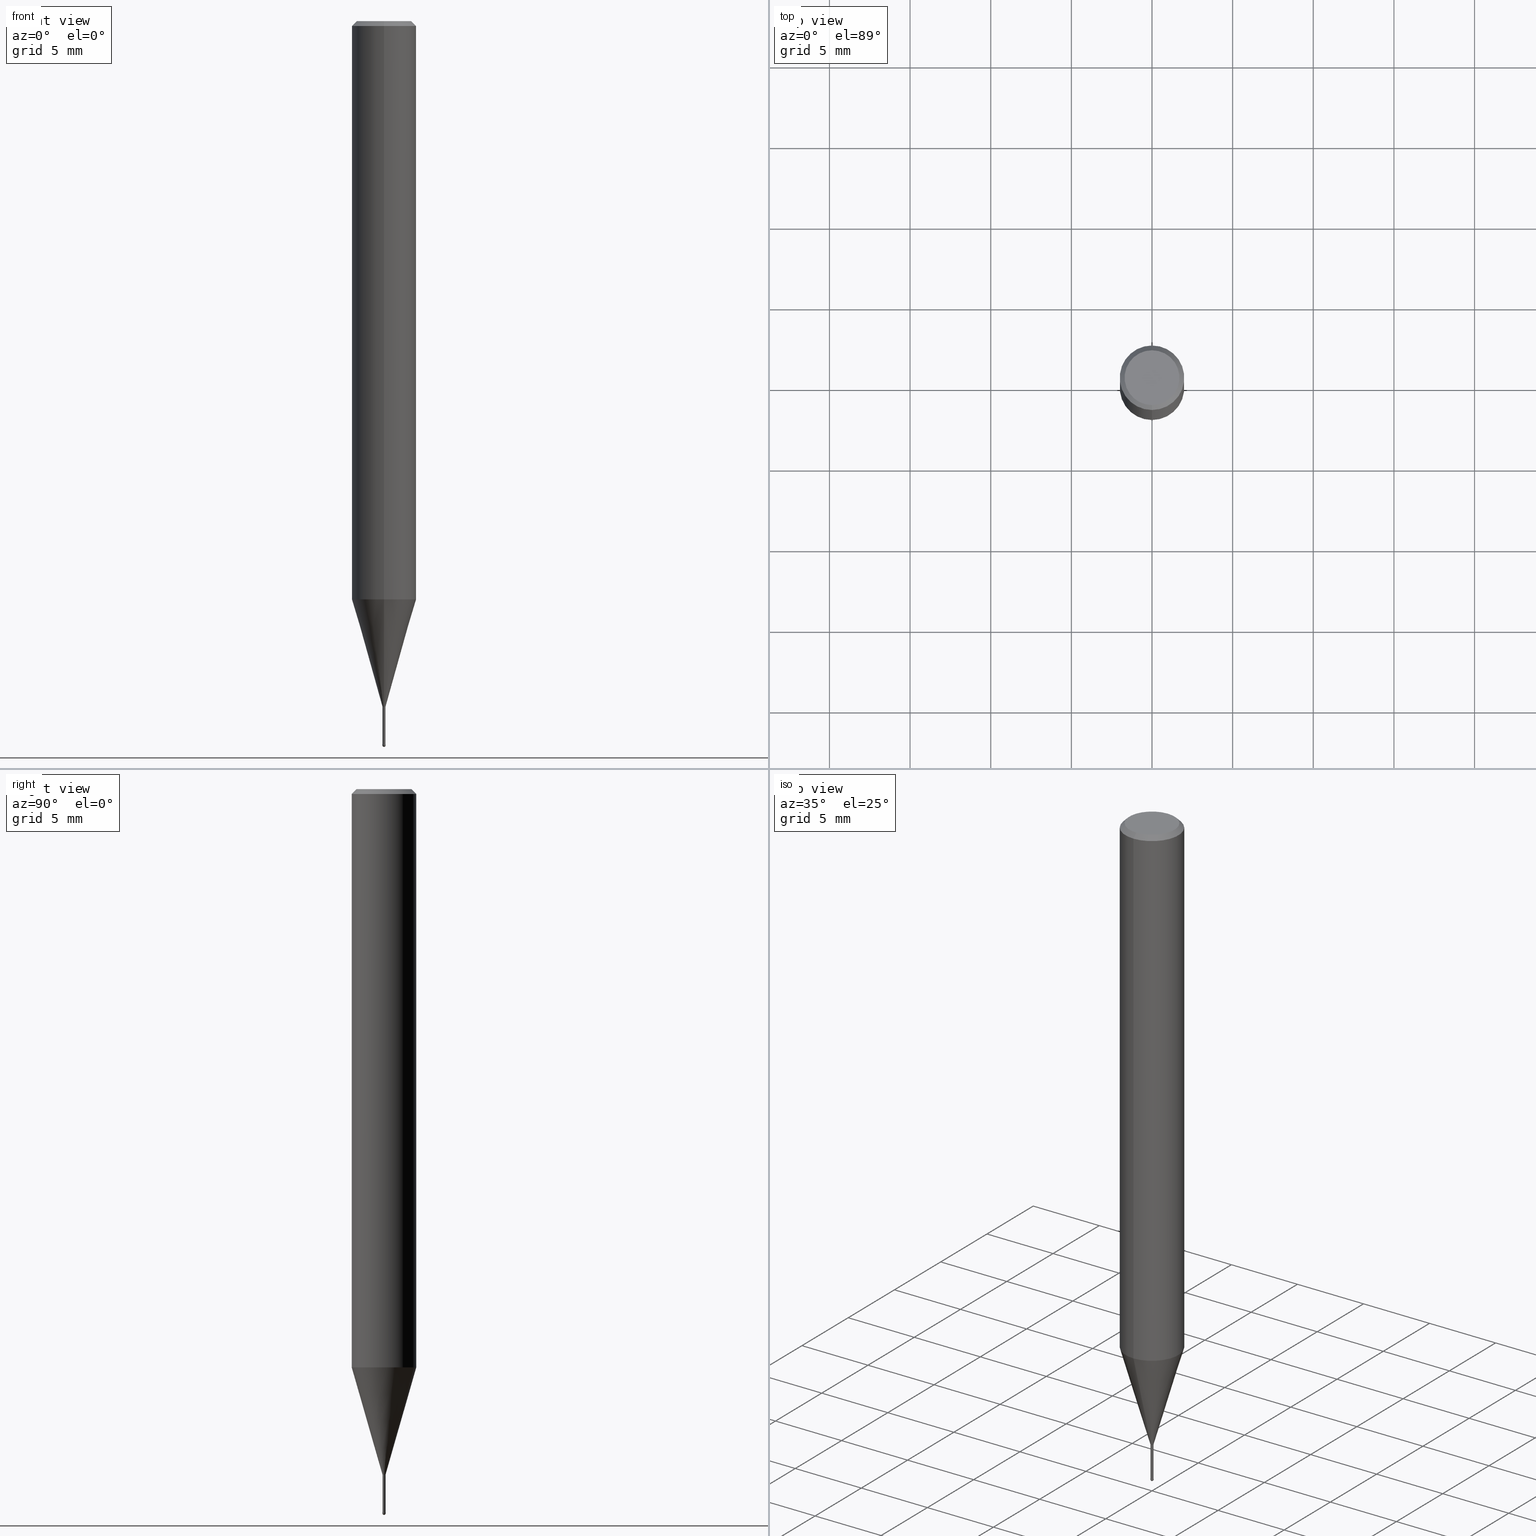
[diagram: canonical four-view strip — front | top / right | iso, engineering-drawing reading convention]
A machine part, canonical four-view strip (front | top / right | iso — engineering-drawing reading convention). The complete STEP part file that produces these views, byte-faithful:
ISO-10303-21;
HEADER;
FILE_DESCRIPTION(('no description'),'unknown implementation level');
FILE_NAME('HSLB2002-025-Huellk.stp','  ',('CIMSOURCE GmbH'),('CADClick - KiM GmbH - www.kimweb.de'),'unknown preprocess','ACIS','unknown authorization');
FILE_SCHEMA(('automotive_design'));
ENDSEC;
DATA;
#1=MECHANICAL_DESIGN_GEOMETRIC_PRESENTATION_REPRESENTATION(' ',(#14,#15,#16,#17,#18,#19,#20,#21,#22,#23,#24,#25,#26,#27,#28,#29,#30,#31,#32,#33,#34,#35,#36,#37,#38,#39,#40,#41,#42,#43,#44,#45,#46,#47,#48,#49,#50,#51,#52,#53,#54,#55,#56,#57,#58,#59,#60,#61,#62,#63,#64,#65,#66,#67,#68,#69,#70,#71,#72,#73,#74),#10);
#2=PRODUCT_DEFINITION_CONTEXT('',#75,'design');
#3=APPLICATION_PROTOCOL_DEFINITION('INTERNATIONAL STANDARD','automotive_design',1994,#75);
#4=PRODUCT_CATEGORY_RELATIONSHIP('NONE','NONE',#76,#77);
#5=SHAPE_DEFINITION_REPRESENTATION(#78,#79);
#6=PRODUCT_DEFINITION_CONTEXT('',#80,'design');
#7=APPLICATION_PROTOCOL_DEFINITION('INTERNATIONAL STANDARD','automotive_design',1994,#80);
#8=PRODUCT_CATEGORY_RELATIONSHIP('NONE','NONE',#81,#82);
#9=SHAPE_DEFINITION_REPRESENTATION(#83,#84);
#10= (GEOMETRIC_REPRESENTATION_CONTEXT(3)GLOBAL_UNCERTAINTY_ASSIGNED_CONTEXT((#87))GLOBAL_UNIT_ASSIGNED_CONTEXT((#89,#90,#91))REPRESENTATION_CONTEXT('NONE','WORKSPACE'));
#14=STYLED_ITEM('',(#93),#94);
#15=STYLED_ITEM('',(#95),#96);
#16=STYLED_ITEM('',(#97),#98);
#17=STYLED_ITEM('',(#99),#100);
#18=STYLED_ITEM('',(#101),#102);
#19=STYLED_ITEM('',(#103),#104);
#20=STYLED_ITEM('',(#105),#106);
#21=STYLED_ITEM('',(#107),#108);
#22=STYLED_ITEM('',(#109),#110);
#23=STYLED_ITEM('',(#111),#112);
#24=STYLED_ITEM('',(#113),#114);
#25=STYLED_ITEM('',(#115),#116);
#26=STYLED_ITEM('',(#117),#118);
#27=STYLED_ITEM('',(#119),#120);
#28=STYLED_ITEM('',(#121),#122);
#29=STYLED_ITEM('',(#123),#124);
#30=STYLED_ITEM('',(#125),#126);
#31=STYLED_ITEM('',(#127),#128);
#32=STYLED_ITEM('',(#129),#130);
#33=STYLED_ITEM('',(#131),#132);
#34=STYLED_ITEM('',(#133),#134);
#35=STYLED_ITEM('',(#135),#136);
#36=STYLED_ITEM('',(#137),#138);
#37=STYLED_ITEM('',(#139),#140);
#38=STYLED_ITEM('',(#141),#142);
#39=STYLED_ITEM('',(#143),#144);
#40=STYLED_ITEM('',(#145),#146);
#41=STYLED_ITEM('',(#147),#148);
#42=STYLED_ITEM('',(#149),#150);
#43=STYLED_ITEM('',(#151),#152);
#44=STYLED_ITEM('',(#153),#154);
#45=STYLED_ITEM('',(#155),#156);
#46=STYLED_ITEM('',(#157),#158);
#47=STYLED_ITEM('',(#159),#160);
#48=STYLED_ITEM('',(#161),#162);
#49=STYLED_ITEM('',(#163),#164);
#50=STYLED_ITEM('',(#165),#166);
#51=STYLED_ITEM('',(#167),#168);
#52=STYLED_ITEM('',(#169),#170);
#53=STYLED_ITEM('',(#171),#172);
#54=STYLED_ITEM('',(#173),#174);
#55=STYLED_ITEM('',(#175),#176);
#56=STYLED_ITEM('',(#177),#178);
#57=STYLED_ITEM('',(#179),#180);
#58=STYLED_ITEM('',(#181),#182);
#59=STYLED_ITEM('',(#183),#184);
#60=STYLED_ITEM('',(#185),#186);
#61=STYLED_ITEM('',(#187),#188);
#62=STYLED_ITEM('',(#189),#190);
#63=STYLED_ITEM('',(#191),#192);
#64=STYLED_ITEM('',(#193),#194);
#65=STYLED_ITEM('',(#195),#196);
#66=STYLED_ITEM('',(#197),#198);
#67=STYLED_ITEM('',(#199),#200);
#68=STYLED_ITEM('',(#201),#202);
#69=STYLED_ITEM('',(#203),#204);
#70=STYLED_ITEM('',(#205),#206);
#71=STYLED_ITEM('',(#207),#208);
#72=STYLED_ITEM('',(#209),#210);
#73=STYLED_ITEM('',(#211),#212);
#74=STYLED_ITEM('',(#213),#214);
#75=APPLICATION_CONTEXT(' ');
#76=PRODUCT_CATEGORY('part','NONE');
#77=PRODUCT_RELATED_PRODUCT_CATEGORY('detail',' ',(#215));
#78=PRODUCT_DEFINITION_SHAPE('NONE','NONE',#216);
#79=ADVANCED_BREP_SHAPE_REPRESENTATION('1',(#146,#217),#10);
#80=APPLICATION_CONTEXT(' ');
#81=PRODUCT_CATEGORY('part','NONE');
#82=PRODUCT_RELATED_PRODUCT_CATEGORY('detail',' ',(#218));
#83=PRODUCT_DEFINITION_SHAPE('NONE','NONE',#219);
#84=ADVANCED_BREP_SHAPE_REPRESENTATION('2',(#96,#220),#10);
#87=UNCERTAINTY_MEASURE_WITH_UNIT(LENGTH_MEASURE(1.0E-006),#89,'','');
#89= (CONVERSION_BASED_UNIT('MILLIMETRE',#223)LENGTH_UNIT()NAMED_UNIT(#226));
#90= (NAMED_UNIT(#228)PLANE_ANGLE_UNIT()SI_UNIT($,.RADIAN.));
#91= (NAMED_UNIT(#228)SOLID_ANGLE_UNIT()SI_UNIT($,.STERADIAN.));
#93=PRESENTATION_STYLE_ASSIGNMENT((#234));
#94=EDGE_CURVE('',#116,#136,#235,.T.);
#95=PRESENTATION_STYLE_ASSIGNMENT((#236));
#96=MANIFOLD_SOLID_BREP('2',#237);
#97=PRESENTATION_STYLE_ASSIGNMENT((#238));
#98=VERTEX_POINT('',#239);
#99=PRESENTATION_STYLE_ASSIGNMENT((#240));
#100=EDGE_CURVE('',#136,#116,#241,.T.);
#101=PRESENTATION_STYLE_ASSIGNMENT((#242));
#102=VERTEX_POINT('',#243);
#103=PRESENTATION_STYLE_ASSIGNMENT((#244));
#104=VERTEX_POINT('',#245);
#105=PRESENTATION_STYLE_ASSIGNMENT((#246));
#106=ADVANCED_FACE('',(#247),#248,.T.);
#107=PRESENTATION_STYLE_ASSIGNMENT((#249));
#108=EDGE_CURVE('',#120,#140,#250,.T.);
#109=PRESENTATION_STYLE_ASSIGNMENT((#251));
#110=EDGE_CURVE('',#98,#140,#252,.T.);
#111=PRESENTATION_STYLE_ASSIGNMENT((#253));
#112=EDGE_CURVE('',#182,#152,#254,.T.);
#113=PRESENTATION_STYLE_ASSIGNMENT((#255));
#114=EDGE_CURVE('',#180,#190,#256,.T.);
#115=PRESENTATION_STYLE_ASSIGNMENT((#257));
#116=VERTEX_POINT('',#258);
#117=PRESENTATION_STYLE_ASSIGNMENT((#259));
#118=EDGE_CURVE('',#124,#142,#260,.T.);
#119=PRESENTATION_STYLE_ASSIGNMENT((#261));
#120=VERTEX_POINT('',#262);
#121=PRESENTATION_STYLE_ASSIGNMENT((#263));
#122=EDGE_CURVE('',#152,#182,#264,.T.);
#123=PRESENTATION_STYLE_ASSIGNMENT((#265));
#124=VERTEX_POINT('',#266);
#125=PRESENTATION_STYLE_ASSIGNMENT((#267));
#126=EDGE_CURVE('',#138,#180,#268,.T.);
#127=PRESENTATION_STYLE_ASSIGNMENT((#269));
#128=ADVANCED_FACE('',(#270),#271,.T.);
#129=PRESENTATION_STYLE_ASSIGNMENT((#272));
#130=ADVANCED_FACE('',(#273),#274,.T.);
#131=PRESENTATION_STYLE_ASSIGNMENT((#275));
#132=EDGE_CURVE('',#154,#180,#276,.T.);
#133=PRESENTATION_STYLE_ASSIGNMENT((#277));
#134=ADVANCED_FACE('',(#278),#279,.T.);
#135=PRESENTATION_STYLE_ASSIGNMENT((#280));
#136=VERTEX_POINT('',#281);
#137=PRESENTATION_STYLE_ASSIGNMENT((#282));
#138=VERTEX_POINT('',#283);
#139=PRESENTATION_STYLE_ASSIGNMENT((#284));
#140=VERTEX_POINT('',#285);
#141=PRESENTATION_STYLE_ASSIGNMENT((#286));
#142=VERTEX_POINT('',#287);
#143=PRESENTATION_STYLE_ASSIGNMENT((#288));
#144=EDGE_CURVE('',#182,#142,#289,.T.);
#145=PRESENTATION_STYLE_ASSIGNMENT((#290));
#146=MANIFOLD_SOLID_BREP('1',#291);
#147=PRESENTATION_STYLE_ASSIGNMENT((#292));
#148=EDGE_CURVE('',#124,#152,#293,.T.);
#149=PRESENTATION_STYLE_ASSIGNMENT((#294));
#150=ADVANCED_FACE('',(#295),#296,.T.);
#151=PRESENTATION_STYLE_ASSIGNMENT((#297));
#152=VERTEX_POINT('',#298);
#153=PRESENTATION_STYLE_ASSIGNMENT((#299));
#154=VERTEX_POINT('',#300);
#155=PRESENTATION_STYLE_ASSIGNMENT((#301));
#156=EDGE_CURVE('',#154,#104,#302,.T.);
#157=PRESENTATION_STYLE_ASSIGNMENT((#303));
#158=EDGE_CURVE('',#180,#154,#304,.T.);
#159=PRESENTATION_STYLE_ASSIGNMENT((#305));
#160=EDGE_CURVE('',#138,#104,#306,.T.);
#161=PRESENTATION_STYLE_ASSIGNMENT((#307));
#162=ADVANCED_FACE('',(#308),#309,.T.);
#163=PRESENTATION_STYLE_ASSIGNMENT((#310));
#164=EDGE_CURVE('',#116,#182,#311,.T.);
#165=PRESENTATION_STYLE_ASSIGNMENT((#312));
#166=ADVANCED_FACE('',(#313),#314,.T.);
#167=PRESENTATION_STYLE_ASSIGNMENT((#315));
#168=EDGE_CURVE('',#140,#98,#316,.T.);
#169=PRESENTATION_STYLE_ASSIGNMENT((#317));
#170=EDGE_CURVE('',#104,#138,#318,.T.);
#171=PRESENTATION_STYLE_ASSIGNMENT((#319));
#172=ADVANCED_FACE('',(#320),#321,.T.);
#173=PRESENTATION_STYLE_ASSIGNMENT((#322));
#174=EDGE_CURVE('',#120,#102,#323,.T.);
#175=PRESENTATION_STYLE_ASSIGNMENT((#324));
#176=ADVANCED_FACE('',(#325),#326,.T.);
#177=PRESENTATION_STYLE_ASSIGNMENT((#327));
#178=ADVANCED_FACE('',(#328),#329,.T.);
#179=PRESENTATION_STYLE_ASSIGNMENT((#330));
#180=VERTEX_POINT('',#331);
#181=PRESENTATION_STYLE_ASSIGNMENT((#332));
#182=VERTEX_POINT('',#333);
#183=PRESENTATION_STYLE_ASSIGNMENT((#334));
#184=ADVANCED_FACE('',(#335),#336,.T.);
#185=PRESENTATION_STYLE_ASSIGNMENT((#337));
#186=ADVANCED_FACE('',(#338,#339),#340,.T.);
#187=PRESENTATION_STYLE_ASSIGNMENT((#341));
#188=EDGE_CURVE('',#98,#140,#342,.T.);
#189=PRESENTATION_STYLE_ASSIGNMENT((#343));
#190=VERTEX_POINT('',#344);
#191=PRESENTATION_STYLE_ASSIGNMENT((#345));
#192=EDGE_CURVE('',#190,#196,#346,.T.);
#193=PRESENTATION_STYLE_ASSIGNMENT((#347));
#194=ADVANCED_FACE('',(#348),#349,.T.);
#195=PRESENTATION_STYLE_ASSIGNMENT((#350));
#196=VERTEX_POINT('',#351);
#197=PRESENTATION_STYLE_ASSIGNMENT((#352));
#198=ADVANCED_FACE('',(#353),#354,.T.);
#199=PRESENTATION_STYLE_ASSIGNMENT((#355));
#200=ADVANCED_FACE('',(#356),#357,.T.);
#201=PRESENTATION_STYLE_ASSIGNMENT((#358));
#202=EDGE_CURVE('',#152,#136,#359,.T.);
#203=PRESENTATION_STYLE_ASSIGNMENT((#360));
#204=ADVANCED_FACE('',(#361),#362,.T.);
#205=PRESENTATION_STYLE_ASSIGNMENT((#363));
#206=EDGE_CURVE('',#98,#102,#364,.T.);
#207=PRESENTATION_STYLE_ASSIGNMENT((#365));
#208=EDGE_CURVE('',#142,#124,#366,.T.);
#209=PRESENTATION_STYLE_ASSIGNMENT((#367));
#210=EDGE_CURVE('',#196,#190,#368,.T.);
#211=PRESENTATION_STYLE_ASSIGNMENT((#369));
#212=EDGE_CURVE('',#196,#154,#370,.T.);
#213=PRESENTATION_STYLE_ASSIGNMENT((#371));
#214=EDGE_CURVE('',#102,#120,#372,.T.);
#215=PRODUCT('1','1','PART-1-DESC',(#373));
#216=PRODUCT_DEFINITION('NONE','NONE',#374,#2);
#217=AXIS2_PLACEMENT_3D('',#375,#376,#377);
#218=PRODUCT('2','2','PART-2-DESC',(#378));
#219=PRODUCT_DEFINITION('NONE','NONE',#379,#6);
#220=AXIS2_PLACEMENT_3D('',#380,#381,#382);
#223=LENGTH_MEASURE_WITH_UNIT(LENGTH_MEASURE(1.0),#383);
#226=DIMENSIONAL_EXPONENTS(1.0,0.0,0.0,0.0,0.0,0.0,0.0);
#228=DIMENSIONAL_EXPONENTS(0.0,0.0,0.0,0.0,0.0,0.0,0.0);
#234=CURVE_STYLE('',#384,POSITIVE_LENGTH_MEASURE(1.0E-006),#385);
#235=CIRCLE('',#386,1.7);
#236=SURFACE_STYLE_USAGE(.BOTH.,#387);
#237=CLOSED_SHELL('',(#150,#134,#198,#194,#200));
#238=POINT_STYLE(' ',#388,POSITIVE_LENGTH_MEASURE(1.0E-006),#389);
#239=CARTESIAN_POINT('',(1.22460635382238E-017,-0.1,-44.9));
#240=CURVE_STYLE('',#390,POSITIVE_LENGTH_MEASURE(1.0E-006),#391);
#241=CIRCLE('',#392,1.7);
#242=POINT_STYLE(' ',#393,POSITIVE_LENGTH_MEASURE(1.0E-006),#394);
#243=CARTESIAN_POINT('',(1.22338174746855E-017,-0.0999,-44.84));
#244=POINT_STYLE(' ',#395,POSITIVE_LENGTH_MEASURE(1.0E-006),#396);
#245=CARTESIAN_POINT('',(2.44915147732706E-016,-1.99995,-35.856));
#246=SURFACE_STYLE_USAGE(.BOTH.,#397);
#247=FACE_OUTER_BOUND('',#398,.T.);
#248=CYLINDRICAL_SURFACE('',#399,0.09495);
#249=CURVE_STYLE('',#400,POSITIVE_LENGTH_MEASURE(1.0E-006),#401);
#250=LINE('',#402,#403);
#251=CURVE_STYLE('',#404,POSITIVE_LENGTH_MEASURE(1.0E-006),#405);
#252=CIRCLE('',#406,0.1);
#253=CURVE_STYLE('',#407,POSITIVE_LENGTH_MEASURE(1.0E-006),#408);
#254=CIRCLE('',#409,2.0);
#255=CURVE_STYLE('',#410,POSITIVE_LENGTH_MEASURE(1.0E-006),#411);
#256=LINE('',#412,#413);
#257=POINT_STYLE(' ',#414,POSITIVE_LENGTH_MEASURE(1.0E-006),#415);
#258=CARTESIAN_POINT('',(0.0,1.7,0.0));
#259=CURVE_STYLE('',#416,POSITIVE_LENGTH_MEASURE(1.0E-006),#417);
#260=CIRCLE('',#418,2.0);
#261=POINT_STYLE(' ',#419,POSITIVE_LENGTH_MEASURE(1.0E-006),#420);
#262=CARTESIAN_POINT('',(0.0,0.0999,-44.84));
#263=CURVE_STYLE('',#421,POSITIVE_LENGTH_MEASURE(1.0E-006),#422);
#264=CIRCLE('',#423,2.0);
#265=POINT_STYLE(' ',#424,POSITIVE_LENGTH_MEASURE(1.0E-006),#425);
#266=CARTESIAN_POINT('',(2.44921270764475E-016,-2.0,-35.856));
#267=CURVE_STYLE('',#426,POSITIVE_LENGTH_MEASURE(1.0E-006),#427);
#268=LINE('',#428,#429);
#269=SURFACE_STYLE_USAGE(.BOTH.,#430);
#270=FACE_OUTER_BOUND('',#431,.T.);
#271=CONICAL_SURFACE('',#432,1.85,0.785398163397453);
#272=SURFACE_STYLE_USAGE(.BOTH.,#433);
#273=FACE_OUTER_BOUND('',#434,.T.);
#274=CONICAL_SURFACE('',#435,1.85,0.785398163397453);
#275=CURVE_STYLE('',#436,POSITIVE_LENGTH_MEASURE(1.0E-006),#437);
#276=CIRCLE('',#438,0.09495);
#277=SURFACE_STYLE_USAGE(.BOTH.,#439);
#278=FACE_OUTER_BOUND('',#440,.T.);
#279=CONICAL_SURFACE('',#441,0.09995,0.00166666512345941);
#280=POINT_STYLE(' ',#442,POSITIVE_LENGTH_MEASURE(1.0E-006),#443);
#281=CARTESIAN_POINT('',(2.08183080149804E-016,-1.7,0.0));
#282=POINT_STYLE(' ',#444,POSITIVE_LENGTH_MEASURE(1.0E-006),#445);
#283=CARTESIAN_POINT('',(0.0,1.99995,-35.856));
#284=POINT_STYLE(' ',#446,POSITIVE_LENGTH_MEASURE(1.0E-006),#447);
#285=CARTESIAN_POINT('',(0.0,0.1,-44.9));
#286=POINT_STYLE(' ',#448,POSITIVE_LENGTH_MEASURE(1.0E-006),#449);
#287=CARTESIAN_POINT('',(0.0,2.0,-35.856));
#288=CURVE_STYLE('',#450,POSITIVE_LENGTH_MEASURE(1.0E-006),#451);
#289=LINE('',#452,#453);
#290=SURFACE_STYLE_USAGE(.BOTH.,#454);
#291=CLOSED_SHELL('',(#204,#172,#162,#128,#186,#176,#130,#166,#184,#106,#178));
#292=CURVE_STYLE('',#455,POSITIVE_LENGTH_MEASURE(1.0E-006),#456);
#293=LINE('',#457,#458);
#294=SURFACE_STYLE_USAGE(.BOTH.,#459);
#295=FACE_OUTER_BOUND('',#460,.T.);
#296=SPHERICAL_SURFACE('',#461,0.1);
#297=POINT_STYLE(' ',#462,POSITIVE_LENGTH_MEASURE(1.0E-006),#463);
#298=CARTESIAN_POINT('',(2.44921270764475E-016,-2.0,-0.299999999999997));
#299=POINT_STYLE(' ',#464,POSITIVE_LENGTH_MEASURE(1.0E-006),#465);
#300=CARTESIAN_POINT('',(1.16276373295435E-017,-0.09495,-42.5));
#301=CURVE_STYLE('',#466,POSITIVE_LENGTH_MEASURE(1.0E-006),#467);
#302=LINE('',#468,#469);
#303=CURVE_STYLE('',#470,POSITIVE_LENGTH_MEASURE(1.0E-006),#471);
#304=CIRCLE('',#472,0.09495);
#305=CURVE_STYLE('',#473,POSITIVE_LENGTH_MEASURE(1.0E-006),#474);
#306=CIRCLE('',#475,1.99995);
#307=SURFACE_STYLE_USAGE(.BOTH.,#476);
#308=FACE_OUTER_BOUND('',#477,.T.);
#309=CYLINDRICAL_SURFACE('',#478,2.0);
#310=CURVE_STYLE('',#479,POSITIVE_LENGTH_MEASURE(1.0E-006),#480);
#311=LINE('',#481,#482);
#312=SURFACE_STYLE_USAGE(.BOTH.,#483);
#313=FACE_OUTER_BOUND('',#484,.T.);
#314=CYLINDRICAL_SURFACE('',#485,2.0);
#315=CURVE_STYLE('',#486,POSITIVE_LENGTH_MEASURE(1.0E-006),#487);
#316=CIRCLE('',#488,0.1);
#317=CURVE_STYLE('',#489,POSITIVE_LENGTH_MEASURE(1.0E-006),#490);
#318=CIRCLE('',#491,1.99995);
#319=SURFACE_STYLE_USAGE(.BOTH.,#492);
#320=FACE_OUTER_BOUND('',#493,.T.);
#321=CONICAL_SURFACE('',#494,1.04745,0.279233718115795);
#322=CURVE_STYLE('',#495,POSITIVE_LENGTH_MEASURE(1.0E-006),#496);
#323=CIRCLE('',#497,0.0999);
#324=SURFACE_STYLE_USAGE(.BOTH.,#498);
#325=FACE_OUTER_BOUND('',#499,.T.);
#326=PLANE('',#500);
#327=SURFACE_STYLE_USAGE(.BOTH.,#501);
#328=FACE_OUTER_BOUND('',#502,.T.);
#329=PLANE('',#503);
#330=POINT_STYLE(' ',#504,POSITIVE_LENGTH_MEASURE(1.0E-006),#505);
#331=CARTESIAN_POINT('',(0.0,0.09495,-42.5));
#332=POINT_STYLE(' ',#506,POSITIVE_LENGTH_MEASURE(1.0E-006),#507);
#333=CARTESIAN_POINT('',(0.0,2.0,-0.299999999999997));
#334=SURFACE_STYLE_USAGE(.BOTH.,#508);
#335=FACE_OUTER_BOUND('',#509,.T.);
#336=CONICAL_SURFACE('',#510,1.04745,0.279233718115795);
#337=SURFACE_STYLE_USAGE(.BOTH.,#511);
#338=FACE_OUTER_BOUND('',#512,.T.);
#339=FACE_BOUND('',#513,.T.);
#340=PLANE('',#514);
#341=CURVE_STYLE('',#515,POSITIVE_LENGTH_MEASURE(1.0E-006),#516);
#342=CIRCLE('',#517,0.1);
#343=POINT_STYLE(' ',#518,POSITIVE_LENGTH_MEASURE(1.0E-006),#519);
#344=CARTESIAN_POINT('',(0.0,0.09495,-44.84));
#345=CURVE_STYLE('',#520,POSITIVE_LENGTH_MEASURE(1.0E-006),#521);
#346=CIRCLE('',#522,0.09495);
#347=SURFACE_STYLE_USAGE(.BOTH.,#523);
#348=FACE_OUTER_BOUND('',#524,.T.);
#349=CONICAL_SURFACE('',#525,0.09995,0.00166666512345941);
#350=POINT_STYLE(' ',#526,POSITIVE_LENGTH_MEASURE(1.0E-006),#527);
#351=CARTESIAN_POINT('',(1.16276373295435E-017,-0.09495,-44.84));
#352=SURFACE_STYLE_USAGE(.BOTH.,#528);
#353=FACE_OUTER_BOUND('',#529,.T.);
#354=PLANE('',#530);
#355=SURFACE_STYLE_USAGE(.BOTH.,#531);
#356=FACE_OUTER_BOUND('',#532,.T.);
#357=SPHERICAL_SURFACE('',#533,0.1);
#358=CURVE_STYLE('',#534,POSITIVE_LENGTH_MEASURE(1.0E-006),#535);
#359=LINE('',#536,#537);
#360=SURFACE_STYLE_USAGE(.BOTH.,#538);
#361=FACE_OUTER_BOUND('',#539,.T.);
#362=CYLINDRICAL_SURFACE('',#540,0.09495);
#363=CURVE_STYLE('',#541,POSITIVE_LENGTH_MEASURE(1.0E-006),#542);
#364=LINE('',#543,#544);
#365=CURVE_STYLE('',#545,POSITIVE_LENGTH_MEASURE(1.0E-006),#546);
#366=CIRCLE('',#547,2.0);
#367=CURVE_STYLE('',#548,POSITIVE_LENGTH_MEASURE(1.0E-006),#549);
#368=CIRCLE('',#550,0.09495);
#369=CURVE_STYLE('',#551,POSITIVE_LENGTH_MEASURE(1.0E-006),#552);
#370=LINE('',#553,#554);
#371=CURVE_STYLE('',#555,POSITIVE_LENGTH_MEASURE(1.0E-006),#556);
#372=CIRCLE('',#557,0.0999);
#373=PRODUCT_CONTEXT('',#75,'mechanical');
#374=PRODUCT_DEFINITION_FORMATION_WITH_SPECIFIED_SOURCE(' ','NONE',#215,.NOT_KNOWN.);
#375=CARTESIAN_POINT('',(0.0,0.0,0.0));
#376=DIRECTION('',(0.0,0.0,1.0));
#377=DIRECTION('',(1.0,0.0,0.0));
#378=PRODUCT_CONTEXT('',#80,'mechanical');
#379=PRODUCT_DEFINITION_FORMATION_WITH_SPECIFIED_SOURCE(' ','NONE',#218,.NOT_KNOWN.);
#380=CARTESIAN_POINT('',(0.0,0.0,0.0));
#381=DIRECTION('',(0.0,0.0,1.0));
#382=DIRECTION('',(1.0,0.0,0.0));
#383= (NAMED_UNIT(#226)LENGTH_UNIT()SI_UNIT(.MILLI.,.METRE.));
#384=DRAUGHTING_PRE_DEFINED_CURVE_FONT('continuous');
#385=COLOUR_RGB('',0.498039215803146,0.498039215803146,0.498039215803146);
#386=AXIS2_PLACEMENT_3D('',#559,#560,#561);
#387=SURFACE_SIDE_STYLE('',(#562));
#388=PRE_DEFINED_MARKER('');
#389=COLOUR_RGB('',0.800000011920929,0.800000011920929,0.800000011920929);
#390=DRAUGHTING_PRE_DEFINED_CURVE_FONT('continuous');
#391=COLOUR_RGB('',0.498039215803146,0.498039215803146,0.498039215803146);
#392=AXIS2_PLACEMENT_3D('',#563,#564,#565);
#393=PRE_DEFINED_MARKER('');
#394=COLOUR_RGB('',0.800000011920929,0.800000011920929,0.800000011920929);
#395=PRE_DEFINED_MARKER('');
#396=COLOUR_RGB('',0.498039215803146,0.498039215803146,0.498039215803146);
#397=SURFACE_SIDE_STYLE('',(#566));
#398=EDGE_LOOP('',(#567,#568,#569,#570));
#399=AXIS2_PLACEMENT_3D('',#571,#572,#573);
#400=DRAUGHTING_PRE_DEFINED_CURVE_FONT('continuous');
#401=COLOUR_RGB('',0.800000011920929,0.800000011920929,0.800000011920929);
#402=CARTESIAN_POINT('',(-1.22399405064547E-017,0.09995,-44.87));
#403=VECTOR('',#574,1.0);
#404=DRAUGHTING_PRE_DEFINED_CURVE_FONT('continuous');
#405=COLOUR_RGB('',0.800000011920929,0.800000011920929,0.800000011920929);
#406=AXIS2_PLACEMENT_3D('',#575,#576,#577);
#407=DRAUGHTING_PRE_DEFINED_CURVE_FONT('continuous');
#408=COLOUR_RGB('',0.498039215803146,0.498039215803146,0.498039215803146);
#409=AXIS2_PLACEMENT_3D('',#578,#579,#580);
#410=DRAUGHTING_PRE_DEFINED_CURVE_FONT('continuous');
#411=COLOUR_RGB('',0.498039215803146,0.498039215803146,0.498039215803146);
#412=CARTESIAN_POINT('',(-1.16276373295435E-017,0.09495,-43.67));
#413=VECTOR('',#581,1.0);
#414=PRE_DEFINED_MARKER('');
#415=COLOUR_RGB('',0.498039215803146,0.498039215803146,0.498039215803146);
#416=DRAUGHTING_PRE_DEFINED_CURVE_FONT('continuous');
#417=COLOUR_RGB('',0.498039215803146,0.498039215803146,0.498039215803146);
#418=AXIS2_PLACEMENT_3D('',#582,#583,#584);
#419=PRE_DEFINED_MARKER('');
#420=COLOUR_RGB('',0.800000011920929,0.800000011920929,0.800000011920929);
#421=DRAUGHTING_PRE_DEFINED_CURVE_FONT('continuous');
#422=COLOUR_RGB('',0.498039215803146,0.498039215803146,0.498039215803146);
#423=AXIS2_PLACEMENT_3D('',#585,#586,#587);
#424=PRE_DEFINED_MARKER('');
#425=COLOUR_RGB('',0.498039215803146,0.498039215803146,0.498039215803146);
#426=DRAUGHTING_PRE_DEFINED_CURVE_FONT('continuous');
#427=COLOUR_RGB('',0.498039215803146,0.498039215803146,0.498039215803146);
#428=CARTESIAN_POINT('',(-1.28271392531125E-016,1.04745,-39.178));
#429=VECTOR('',#588,1.0);
#430=SURFACE_SIDE_STYLE('',(#589));
#431=EDGE_LOOP('',(#590,#591,#592,#593));
#432=AXIS2_PLACEMENT_3D('',#594,#595,#596);
#433=SURFACE_SIDE_STYLE('',(#597));
#434=EDGE_LOOP('',(#598,#599,#600,#601));
#435=AXIS2_PLACEMENT_3D('',#602,#603,#604);
#436=DRAUGHTING_PRE_DEFINED_CURVE_FONT('continuous');
#437=COLOUR_RGB('',0.498039215803146,0.498039215803146,0.498039215803146);
#438=AXIS2_PLACEMENT_3D('',#605,#606,#607);
#439=SURFACE_SIDE_STYLE('',(#608));
#440=EDGE_LOOP('',(#609,#610,#611,#612));
#441=AXIS2_PLACEMENT_3D('',#613,#614,#615);
#442=PRE_DEFINED_MARKER('');
#443=COLOUR_RGB('',0.498039215803146,0.498039215803146,0.498039215803146);
#444=PRE_DEFINED_MARKER('');
#445=COLOUR_RGB('',0.498039215803146,0.498039215803146,0.498039215803146);
#446=PRE_DEFINED_MARKER('');
#447=COLOUR_RGB('',0.800000011920929,0.800000011920929,0.800000011920929);
#448=PRE_DEFINED_MARKER('');
#449=COLOUR_RGB('',0.498039215803146,0.498039215803146,0.498039215803146);
#450=DRAUGHTING_PRE_DEFINED_CURVE_FONT('continuous');
#451=COLOUR_RGB('',0.498039215803146,0.498039215803146,0.498039215803146);
#452=CARTESIAN_POINT('',(-2.44921270764475E-016,2.0,-18.078));
#453=VECTOR('',#616,1.0);
#454=SURFACE_SIDE_STYLE('',(#617));
#455=DRAUGHTING_PRE_DEFINED_CURVE_FONT('continuous');
#456=COLOUR_RGB('',0.498039215803146,0.498039215803146,0.498039215803146);
#457=CARTESIAN_POINT('',(2.44921270764475E-016,-2.0,-18.078));
#458=VECTOR('',#618,1.0);
#459=SURFACE_SIDE_STYLE('',(#619));
#460=EDGE_LOOP('',(#620,#621));
#461=AXIS2_PLACEMENT_3D('',#622,#623,#624);
#462=PRE_DEFINED_MARKER('');
#463=COLOUR_RGB('',0.498039215803146,0.498039215803146,0.498039215803146);
#464=PRE_DEFINED_MARKER('');
#465=COLOUR_RGB('',0.498039215803146,0.498039215803146,0.498039215803146);
#466=DRAUGHTING_PRE_DEFINED_CURVE_FONT('continuous');
#467=COLOUR_RGB('',0.498039215803146,0.498039215803146,0.498039215803146);
#468=CARTESIAN_POINT('',(1.28271392531125E-016,-1.04745,-39.178));
#469=VECTOR('',#625,1.0);
#470=DRAUGHTING_PRE_DEFINED_CURVE_FONT('continuous');
#471=COLOUR_RGB('',0.498039215803146,0.498039215803146,0.498039215803146);
#472=AXIS2_PLACEMENT_3D('',#626,#627,#628);
#473=DRAUGHTING_PRE_DEFINED_CURVE_FONT('continuous');
#474=COLOUR_RGB('',0.498039215803146,0.498039215803146,0.498039215803146);
#475=AXIS2_PLACEMENT_3D('',#629,#630,#631);
#476=SURFACE_SIDE_STYLE('',(#632));
#477=EDGE_LOOP('',(#633,#634,#635,#636));
#478=AXIS2_PLACEMENT_3D('',#637,#638,#639);
#479=DRAUGHTING_PRE_DEFINED_CURVE_FONT('continuous');
#480=COLOUR_RGB('',0.498039215803146,0.498039215803146,0.498039215803146);
#481=CARTESIAN_POINT('',(-2.2655217545714E-016,1.85,-0.149999999999999));
#482=VECTOR('',#640,1.0);
#483=SURFACE_SIDE_STYLE('',(#641));
#484=EDGE_LOOP('',(#642,#643,#644,#645));
#485=AXIS2_PLACEMENT_3D('',#646,#647,#648);
#486=DRAUGHTING_PRE_DEFINED_CURVE_FONT('continuous');
#487=COLOUR_RGB('',0.800000011920929,0.800000011920929,0.800000011920929);
#488=AXIS2_PLACEMENT_3D('',#649,#650,#651);
#489=DRAUGHTING_PRE_DEFINED_CURVE_FONT('continuous');
#490=COLOUR_RGB('',0.498039215803146,0.498039215803146,0.498039215803146);
#491=AXIS2_PLACEMENT_3D('',#652,#653,#654);
#492=SURFACE_SIDE_STYLE('',(#655));
#493=EDGE_LOOP('',(#656,#657,#658,#659));
#494=AXIS2_PLACEMENT_3D('',#660,#661,#662);
#495=DRAUGHTING_PRE_DEFINED_CURVE_FONT('continuous');
#496=COLOUR_RGB('',0.800000011920929,0.800000011920929,0.800000011920929);
#497=AXIS2_PLACEMENT_3D('',#663,#664,#665);
#498=SURFACE_SIDE_STYLE('',(#666));
#499=EDGE_LOOP('',(#667,#668));
#500=AXIS2_PLACEMENT_3D('',#669,#670,#671);
#501=SURFACE_SIDE_STYLE('',(#672));
#502=EDGE_LOOP('',(#673,#674));
#503=AXIS2_PLACEMENT_3D('',#675,#676,#677);
#504=PRE_DEFINED_MARKER('');
#505=COLOUR_RGB('',0.498039215803146,0.498039215803146,0.498039215803146);
#506=PRE_DEFINED_MARKER('');
#507=COLOUR_RGB('',0.498039215803146,0.498039215803146,0.498039215803146);
#508=SURFACE_SIDE_STYLE('',(#678));
#509=EDGE_LOOP('',(#679,#680,#681,#682));
#510=AXIS2_PLACEMENT_3D('',#683,#684,#685);
#511=SURFACE_SIDE_STYLE('',(#686));
#512=EDGE_LOOP('',(#687,#688));
#513=EDGE_LOOP('',(#689,#690));
#514=AXIS2_PLACEMENT_3D('',#691,#692,#693);
#515=DRAUGHTING_PRE_DEFINED_CURVE_FONT('continuous');
#516=COLOUR_RGB('',0.800000011920929,0.800000011920929,0.800000011920929);
#517=AXIS2_PLACEMENT_3D('',#694,#695,#696);
#518=PRE_DEFINED_MARKER('');
#519=COLOUR_RGB('',0.498039215803146,0.498039215803146,0.498039215803146);
#520=DRAUGHTING_PRE_DEFINED_CURVE_FONT('continuous');
#521=COLOUR_RGB('',0.498039215803146,0.498039215803146,0.498039215803146);
#522=AXIS2_PLACEMENT_3D('',#697,#698,#699);
#523=SURFACE_SIDE_STYLE('',(#700));
#524=EDGE_LOOP('',(#701,#702,#703,#704));
#525=AXIS2_PLACEMENT_3D('',#705,#706,#707);
#526=PRE_DEFINED_MARKER('');
#527=COLOUR_RGB('',0.498039215803146,0.498039215803146,0.498039215803146);
#528=SURFACE_SIDE_STYLE('',(#708));
#529=EDGE_LOOP('',(#709,#710));
#530=AXIS2_PLACEMENT_3D('',#711,#712,#713);
#531=SURFACE_SIDE_STYLE('',(#714));
#532=EDGE_LOOP('',(#715,#716));
#533=AXIS2_PLACEMENT_3D('',#717,#718,#719);
#534=DRAUGHTING_PRE_DEFINED_CURVE_FONT('continuous');
#535=COLOUR_RGB('',0.498039215803146,0.498039215803146,0.498039215803146);
#536=CARTESIAN_POINT('',(2.2655217545714E-016,-1.85,-0.149999999999999));
#537=VECTOR('',#720,1.0);
#538=SURFACE_SIDE_STYLE('',(#721));
#539=EDGE_LOOP('',(#722,#723,#724,#725));
#540=AXIS2_PLACEMENT_3D('',#726,#727,#728);
#541=DRAUGHTING_PRE_DEFINED_CURVE_FONT('continuous');
#542=COLOUR_RGB('',0.800000011920929,0.800000011920929,0.800000011920929);
#543=CARTESIAN_POINT('',(1.22399405064547E-017,-0.09995,-44.87));
#544=VECTOR('',#729,1.0);
#545=DRAUGHTING_PRE_DEFINED_CURVE_FONT('continuous');
#546=COLOUR_RGB('',0.498039215803146,0.498039215803146,0.498039215803146);
#547=AXIS2_PLACEMENT_3D('',#730,#731,#732);
#548=DRAUGHTING_PRE_DEFINED_CURVE_FONT('continuous');
#549=COLOUR_RGB('',0.498039215803146,0.498039215803146,0.498039215803146);
#550=AXIS2_PLACEMENT_3D('',#733,#734,#735);
#551=DRAUGHTING_PRE_DEFINED_CURVE_FONT('continuous');
#552=COLOUR_RGB('',0.498039215803146,0.498039215803146,0.498039215803146);
#553=CARTESIAN_POINT('',(1.16276373295435E-017,-0.09495,-43.67));
#554=VECTOR('',#736,1.0);
#555=DRAUGHTING_PRE_DEFINED_CURVE_FONT('continuous');
#556=COLOUR_RGB('',0.800000011920929,0.800000011920929,0.800000011920929);
#557=AXIS2_PLACEMENT_3D('',#737,#738,#739);
#559=CARTESIAN_POINT('',(0.0,0.0,0.0));
#560=DIRECTION('',(0.0,0.0,-1.0));
#561=DIRECTION('',(0.0,1.0,0.0));
#562=SURFACE_STYLE_FILL_AREA(#740);
#563=CARTESIAN_POINT('',(0.0,0.0,0.0));
#564=DIRECTION('',(0.0,0.0,-1.0));
#565=DIRECTION('',(0.0,1.0,0.0));
#566=SURFACE_STYLE_FILL_AREA(#741);
#567=ORIENTED_EDGE('',*,*,#114,.T.);
#568=ORIENTED_EDGE('',*,*,#210,.F.);
#569=ORIENTED_EDGE('',*,*,#212,.T.);
#570=ORIENTED_EDGE('',*,*,#132,.T.);
#571=CARTESIAN_POINT('',(0.0,0.0,-43.67));
#572=DIRECTION('',(-0.0,-0.0,1.0));
#573=DIRECTION('',(0.0,1.0,0.0));
#574=DIRECTION('',(-2.041007754973E-019,0.00166666435185672,-0.999998611114005));
#575=CARTESIAN_POINT('',(0.0,0.0,-44.9));
#576=DIRECTION('',(0.0,0.0,-1.0));
#577=DIRECTION('',(0.0,1.0,0.0));
#578=CARTESIAN_POINT('',(0.0,0.0,-0.299999999999997));
#579=DIRECTION('',(0.0,0.0,-1.0));
#580=DIRECTION('',(0.0,1.0,0.0));
#581=DIRECTION('',(0.0,0.0,-1.0));
#582=CARTESIAN_POINT('',(0.0,0.0,-35.856));
#583=DIRECTION('',(0.0,0.0,-1.0));
#584=DIRECTION('',(0.0,1.0,0.0));
#585=CARTESIAN_POINT('',(0.0,0.0,-0.299999999999997));
#586=DIRECTION('',(0.0,0.0,-1.0));
#587=DIRECTION('',(0.0,1.0,0.0));
#588=DIRECTION('',(3.37524935540219E-017,-0.275619128127744,-0.961266922457078));
#589=SURFACE_STYLE_FILL_AREA(#742);
#590=ORIENTED_EDGE('',*,*,#164,.F.);
#591=ORIENTED_EDGE('',*,*,#94,.T.);
#592=ORIENTED_EDGE('',*,*,#202,.F.);
#593=ORIENTED_EDGE('',*,*,#112,.F.);
#594=CARTESIAN_POINT('',(0.0,0.0,-0.149999999999999));
#595=DIRECTION('',(0.0,-0.0,-1.0));
#596=DIRECTION('',(0.0,1.0,0.0));
#597=SURFACE_STYLE_FILL_AREA(#743);
#598=ORIENTED_EDGE('',*,*,#164,.T.);
#599=ORIENTED_EDGE('',*,*,#122,.F.);
#600=ORIENTED_EDGE('',*,*,#202,.T.);
#601=ORIENTED_EDGE('',*,*,#100,.T.);
#602=CARTESIAN_POINT('',(0.0,0.0,-0.149999999999999));
#603=DIRECTION('',(0.0,-0.0,-1.0));
#604=DIRECTION('',(0.0,1.0,0.0));
#605=CARTESIAN_POINT('',(0.0,0.0,-42.5));
#606=DIRECTION('',(0.0,0.0,-1.0));
#607=DIRECTION('',(0.0,1.0,0.0));
#608=SURFACE_STYLE_FILL_AREA(#744);
#609=ORIENTED_EDGE('',*,*,#108,.F.);
#610=ORIENTED_EDGE('',*,*,#174,.T.);
#611=ORIENTED_EDGE('',*,*,#206,.F.);
#612=ORIENTED_EDGE('',*,*,#168,.F.);
#613=CARTESIAN_POINT('',(0.0,0.0,-44.87));
#614=DIRECTION('',(0.0,-0.0,-1.0));
#615=DIRECTION('',(0.0,1.0,0.0));
#616=DIRECTION('',(0.0,0.0,-1.0));
#617=SURFACE_STYLE_FILL_AREA(#745);
#618=DIRECTION('',(-0.0,-0.0,1.0));
#619=SURFACE_STYLE_FILL_AREA(#746);
#620=ORIENTED_EDGE('',*,*,#188,.F.);
#621=ORIENTED_EDGE('',*,*,#110,.T.);
#622=CARTESIAN_POINT('',(0.0,0.0,-44.9));
#623=DIRECTION('',(0.0,1.0,0.0));
#624=DIRECTION('',(0.0,0.0,-1.0));
#625=DIRECTION('',(3.37524935540219E-017,-0.275619128127744,0.961266922457078));
#626=CARTESIAN_POINT('',(0.0,0.0,-42.5));
#627=DIRECTION('',(0.0,0.0,-1.0));
#628=DIRECTION('',(0.0,1.0,0.0));
#629=CARTESIAN_POINT('',(0.0,0.0,-35.856));
#630=DIRECTION('',(0.0,0.0,-1.0));
#631=DIRECTION('',(0.0,1.0,0.0));
#632=SURFACE_STYLE_FILL_AREA(#747);
#633=ORIENTED_EDGE('',*,*,#144,.F.);
#634=ORIENTED_EDGE('',*,*,#112,.T.);
#635=ORIENTED_EDGE('',*,*,#148,.F.);
#636=ORIENTED_EDGE('',*,*,#208,.F.);
#637=CARTESIAN_POINT('',(0.0,0.0,-18.078));
#638=DIRECTION('',(-0.0,-0.0,1.0));
#639=DIRECTION('',(0.0,1.0,0.0));
#640=DIRECTION('',(-8.6592745707194E-017,0.707106781186551,-0.707106781186544));
#641=SURFACE_STYLE_FILL_AREA(#748);
#642=ORIENTED_EDGE('',*,*,#144,.T.);
#643=ORIENTED_EDGE('',*,*,#118,.F.);
#644=ORIENTED_EDGE('',*,*,#148,.T.);
#645=ORIENTED_EDGE('',*,*,#122,.T.);
#646=CARTESIAN_POINT('',(0.0,0.0,-18.078));
#647=DIRECTION('',(-0.0,-0.0,1.0));
#648=DIRECTION('',(0.0,1.0,0.0));
#649=CARTESIAN_POINT('',(0.0,0.0,-44.9));
#650=DIRECTION('',(0.0,0.0,-1.0));
#651=DIRECTION('',(0.0,1.0,0.0));
#652=CARTESIAN_POINT('',(0.0,0.0,-35.856));
#653=DIRECTION('',(0.0,0.0,-1.0));
#654=DIRECTION('',(0.0,1.0,0.0));
#655=SURFACE_STYLE_FILL_AREA(#749);
#656=ORIENTED_EDGE('',*,*,#126,.F.);
#657=ORIENTED_EDGE('',*,*,#160,.T.);
#658=ORIENTED_EDGE('',*,*,#156,.F.);
#659=ORIENTED_EDGE('',*,*,#158,.F.);
#660=CARTESIAN_POINT('',(0.0,0.0,-39.178));
#661=DIRECTION('',(-0.0,-0.0,1.0));
#662=DIRECTION('',(0.0,1.0,0.0));
#663=CARTESIAN_POINT('',(0.0,0.0,-44.84));
#664=DIRECTION('',(0.0,0.0,-1.0));
#665=DIRECTION('',(0.0,1.0,0.0));
#666=SURFACE_STYLE_FILL_AREA(#750);
#667=ORIENTED_EDGE('',*,*,#94,.F.);
#668=ORIENTED_EDGE('',*,*,#100,.F.);
#669=CARTESIAN_POINT('',(0.0,0.85,0.0));
#670=DIRECTION('',(-0.0,0.0,1.0));
#671=DIRECTION('',(0.0,-1.0,0.0));
#672=SURFACE_STYLE_FILL_AREA(#751);
#673=ORIENTED_EDGE('',*,*,#192,.T.);
#674=ORIENTED_EDGE('',*,*,#210,.T.);
#675=CARTESIAN_POINT('',(0.0,0.047475,-44.84));
#676=DIRECTION('',(0.0,0.0,-1.0));
#677=DIRECTION('',(0.0,1.0,0.0));
#678=SURFACE_STYLE_FILL_AREA(#752);
#679=ORIENTED_EDGE('',*,*,#126,.T.);
#680=ORIENTED_EDGE('',*,*,#132,.F.);
#681=ORIENTED_EDGE('',*,*,#156,.T.);
#682=ORIENTED_EDGE('',*,*,#170,.T.);
#683=CARTESIAN_POINT('',(0.0,0.0,-39.178));
#684=DIRECTION('',(-0.0,-0.0,1.0));
#685=DIRECTION('',(0.0,1.0,0.0));
#686=SURFACE_STYLE_FILL_AREA(#753);
#687=ORIENTED_EDGE('',*,*,#208,.T.);
#688=ORIENTED_EDGE('',*,*,#118,.T.);
#689=ORIENTED_EDGE('',*,*,#160,.F.);
#690=ORIENTED_EDGE('',*,*,#170,.F.);
#691=CARTESIAN_POINT('',(0.0,1.0,-35.856));
#692=DIRECTION('',(0.0,0.0,-1.0));
#693=DIRECTION('',(0.0,1.0,0.0));
#694=CARTESIAN_POINT('',(0.0,0.0,-44.9));
#695=DIRECTION('',(1.0,0.0,1.22460635382236E-016));
#696=DIRECTION('',(-1.22460635382236E-016,0.0,1.0));
#697=CARTESIAN_POINT('',(0.0,0.0,-44.84));
#698=DIRECTION('',(0.0,0.0,-1.0));
#699=DIRECTION('',(0.0,1.0,0.0));
#700=SURFACE_STYLE_FILL_AREA(#754);
#701=ORIENTED_EDGE('',*,*,#108,.T.);
#702=ORIENTED_EDGE('',*,*,#110,.F.);
#703=ORIENTED_EDGE('',*,*,#206,.T.);
#704=ORIENTED_EDGE('',*,*,#214,.T.);
#705=CARTESIAN_POINT('',(0.0,0.0,-44.87));
#706=DIRECTION('',(0.0,-0.0,-1.0));
#707=DIRECTION('',(0.0,1.0,0.0));
#708=SURFACE_STYLE_FILL_AREA(#755);
#709=ORIENTED_EDGE('',*,*,#174,.F.);
#710=ORIENTED_EDGE('',*,*,#214,.F.);
#711=CARTESIAN_POINT('',(0.0,0.04995,-44.84));
#712=DIRECTION('',(-0.0,0.0,1.0));
#713=DIRECTION('',(0.0,-1.0,0.0));
#714=SURFACE_STYLE_FILL_AREA(#756);
#715=ORIENTED_EDGE('',*,*,#188,.T.);
#716=ORIENTED_EDGE('',*,*,#168,.T.);
#717=CARTESIAN_POINT('',(0.0,0.0,-44.9));
#718=DIRECTION('',(0.0,1.0,0.0));
#719=DIRECTION('',(0.0,0.0,-1.0));
#720=DIRECTION('',(-8.6592745707194E-017,0.707106781186551,0.707106781186544));
#721=SURFACE_STYLE_FILL_AREA(#757);
#722=ORIENTED_EDGE('',*,*,#114,.F.);
#723=ORIENTED_EDGE('',*,*,#158,.T.);
#724=ORIENTED_EDGE('',*,*,#212,.F.);
#725=ORIENTED_EDGE('',*,*,#192,.F.);
#726=CARTESIAN_POINT('',(0.0,0.0,-43.67));
#727=DIRECTION('',(-0.0,-0.0,1.0));
#728=DIRECTION('',(0.0,1.0,0.0));
#729=DIRECTION('',(-2.041007754973E-019,0.00166666435185672,0.999998611114005));
#730=CARTESIAN_POINT('',(0.0,0.0,-35.856));
#731=DIRECTION('',(0.0,0.0,-1.0));
#732=DIRECTION('',(0.0,1.0,0.0));
#733=CARTESIAN_POINT('',(0.0,0.0,-44.84));
#734=DIRECTION('',(0.0,0.0,-1.0));
#735=DIRECTION('',(0.0,1.0,0.0));
#736=DIRECTION('',(-0.0,-0.0,1.0));
#737=CARTESIAN_POINT('',(0.0,0.0,-44.84));
#738=DIRECTION('',(0.0,0.0,-1.0));
#739=DIRECTION('',(0.0,1.0,0.0));
#740=FILL_AREA_STYLE('',(#758));
#741=FILL_AREA_STYLE('',(#759));
#742=FILL_AREA_STYLE('',(#760));
#743=FILL_AREA_STYLE('',(#761));
#744=FILL_AREA_STYLE('',(#762));
#745=FILL_AREA_STYLE('',(#763));
#746=FILL_AREA_STYLE('',(#764));
#747=FILL_AREA_STYLE('',(#765));
#748=FILL_AREA_STYLE('',(#766));
#749=FILL_AREA_STYLE('',(#767));
#750=FILL_AREA_STYLE('',(#768));
#751=FILL_AREA_STYLE('',(#769));
#752=FILL_AREA_STYLE('',(#770));
#753=FILL_AREA_STYLE('',(#771));
#754=FILL_AREA_STYLE('',(#772));
#755=FILL_AREA_STYLE('',(#773));
#756=FILL_AREA_STYLE('',(#774));
#757=FILL_AREA_STYLE('',(#775));
#758=FILL_AREA_STYLE_COLOUR('',#776);
#759=FILL_AREA_STYLE_COLOUR('',#777);
#760=FILL_AREA_STYLE_COLOUR('',#778);
#761=FILL_AREA_STYLE_COLOUR('',#779);
#762=FILL_AREA_STYLE_COLOUR('',#780);
#763=FILL_AREA_STYLE_COLOUR('',#781);
#764=FILL_AREA_STYLE_COLOUR('',#782);
#765=FILL_AREA_STYLE_COLOUR('',#783);
#766=FILL_AREA_STYLE_COLOUR('',#784);
#767=FILL_AREA_STYLE_COLOUR('',#785);
#768=FILL_AREA_STYLE_COLOUR('',#786);
#769=FILL_AREA_STYLE_COLOUR('',#787);
#770=FILL_AREA_STYLE_COLOUR('',#788);
#771=FILL_AREA_STYLE_COLOUR('',#789);
#772=FILL_AREA_STYLE_COLOUR('',#790);
#773=FILL_AREA_STYLE_COLOUR('',#791);
#774=FILL_AREA_STYLE_COLOUR('',#792);
#775=FILL_AREA_STYLE_COLOUR('',#793);
#776=COLOUR_RGB('',0.800000011920929,0.800000011920929,0.800000011920929);
#777=COLOUR_RGB('',0.498039215803146,0.498039215803146,0.498039215803146);
#778=COLOUR_RGB('',0.498039215803146,0.498039215803146,0.498039215803146);
#779=COLOUR_RGB('',0.498039215803146,0.498039215803146,0.498039215803146);
#780=COLOUR_RGB('',0.800000011920929,0.800000011920929,0.800000011920929);
#781=COLOUR_RGB('',0.498039215803146,0.498039215803146,0.498039215803146);
#782=COLOUR_RGB('',0.800000011920929,0.800000011920929,0.800000011920929);
#783=COLOUR_RGB('',0.498039215803146,0.498039215803146,0.498039215803146);
#784=COLOUR_RGB('',0.498039215803146,0.498039215803146,0.498039215803146);
#785=COLOUR_RGB('',0.498039215803146,0.498039215803146,0.498039215803146);
#786=COLOUR_RGB('',0.498039215803146,0.498039215803146,0.498039215803146);
#787=COLOUR_RGB('',0.498039215803146,0.498039215803146,0.498039215803146);
#788=COLOUR_RGB('',0.498039215803146,0.498039215803146,0.498039215803146);
#789=COLOUR_RGB('',0.498039215803146,0.498039215803146,0.498039215803146);
#790=COLOUR_RGB('',0.800000011920929,0.800000011920929,0.800000011920929);
#791=COLOUR_RGB('',0.800000011920929,0.800000011920929,0.800000011920929);
#792=COLOUR_RGB('',0.800000011920929,0.800000011920929,0.800000011920929);
#793=COLOUR_RGB('',0.498039215803146,0.498039215803146,0.498039215803146);
#794=AXIS2_PLACEMENT_3D('PCS',#795,#796,#797);
#795=CARTESIAN_POINT('',(0.0,0.0,0.0));
#796=DIRECTION('',(0.0,0.0,1.0));
#797=DIRECTION('',(1.0,0.0,0.0));
#798=AXIS2_PLACEMENT_3D('CIP',#799,#800,#801);
#799=CARTESIAN_POINT('',(0.0,0.0,-45.0));
#800=DIRECTION('',(0.0,0.0,1.0));
#801=DIRECTION('',(1.0,0.0,0.0));
#802=AXIS2_PLACEMENT_3D('CRP',#803,#804,#805);
#803=CARTESIAN_POINT('',(-0.1,0.0,-45.0));
#804=DIRECTION('',(0.0,0.0,1.0));
#805=DIRECTION('',(1.0,0.0,0.0));
#806=AXIS2_PLACEMENT_3D('MCS',#807,#808,#809);
#807=CARTESIAN_POINT('',(0.0,0.0,-35.856));
#808=DIRECTION('',(0.0,0.0,1.0));
#809=DIRECTION('',(1.0,0.0,0.0));
#810=CONSTRUCTIVE_GEOMETRY_REPRESENTATION_RELATIONSHIP('coordinate systems',$,#79,#811);
#811=CONSTRUCTIVE_GEOMETRY_REPRESENTATION('coordinate systems',(#794,#798,#802,#806),#10);
ENDSEC;
END-ISO-10303-21;
